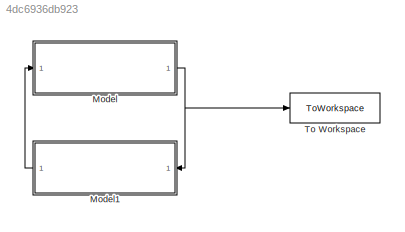
MODEL slx_4dc6936db923
KIND model
CONFIG AbsTol = auto
CONFIG EnableMultiTasking = off
CONFIG FixedStep = auto
CONFIG MaxStep = auto
CONFIG MinStep = auto
CONFIG RelTol = 1e-6
CONFIG SampleTimeConstraint = Unconstrained
CONFIG SolverName = ode45
CONFIG StartTime = 0.0
CONFIG StopTime = 5
BLOCK [ModelReference] Model
  ModelNameDialog = Plant.slx
  ModelReferenceVersion = 1.49
  Ports = [1, 1]
BLOCK [ModelReference] Model1
  ModelNameDialog = Cont.slx
  ModelReferenceVersion = 2.59
  NameLocation = top
  Ports = [1, 1]
BLOCK [ToWorkspace] To Workspace
  FixptAsFi = on
  MaxDataPoints = inf
  Ports = [1]
  VariableName = xk
LINE Model1:1 -> Model:1
NET Model:1 -> Model1:1, To Workspace:1
note: NET lines group one-source signal fan-out (src -> all destinations, sorted); 1:1 wires keep LINE
